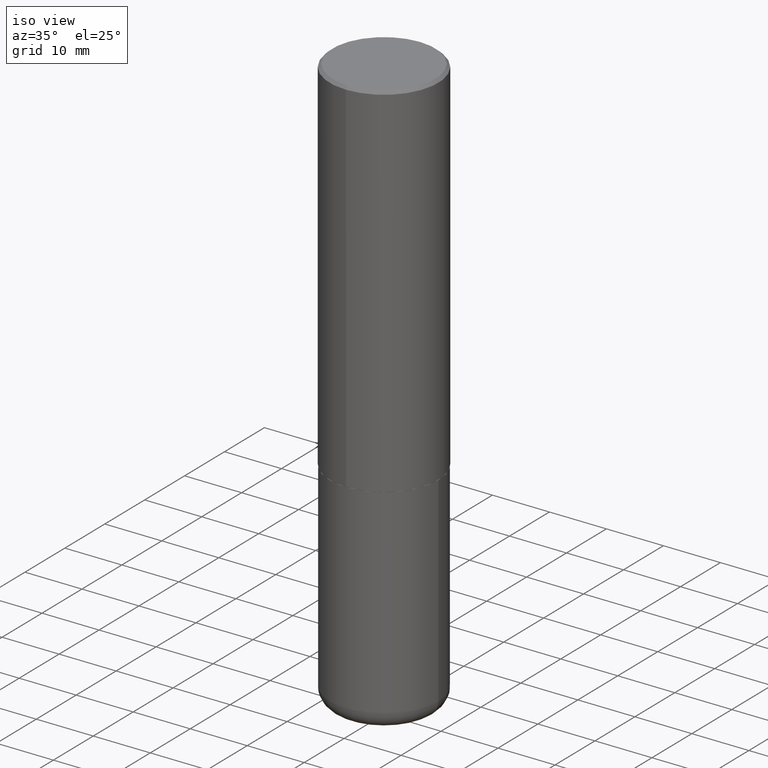
[diagram: clean part render]
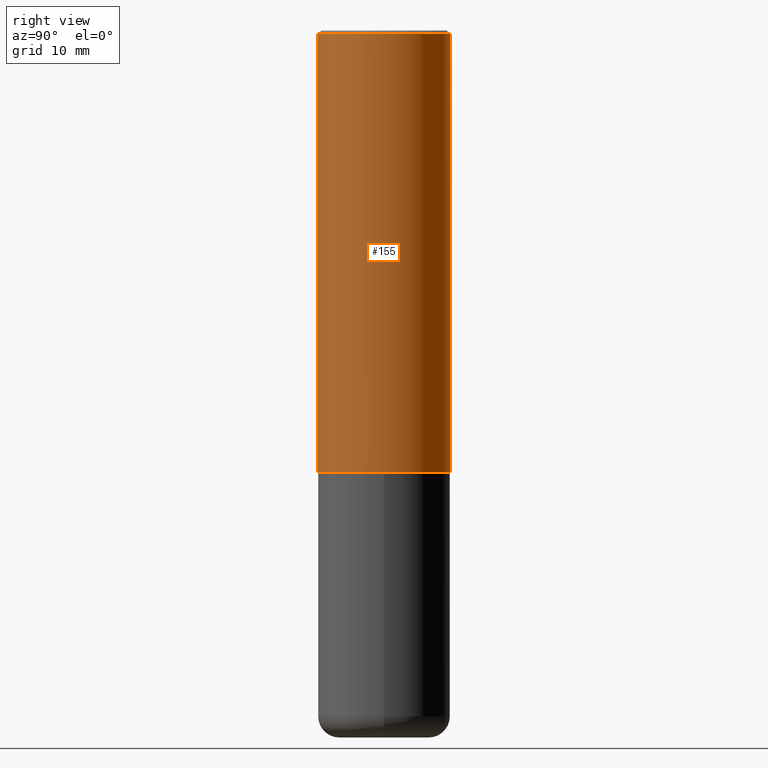
[diagram: tour spotlight — one face highlighted and labeled with its STEP entity id]
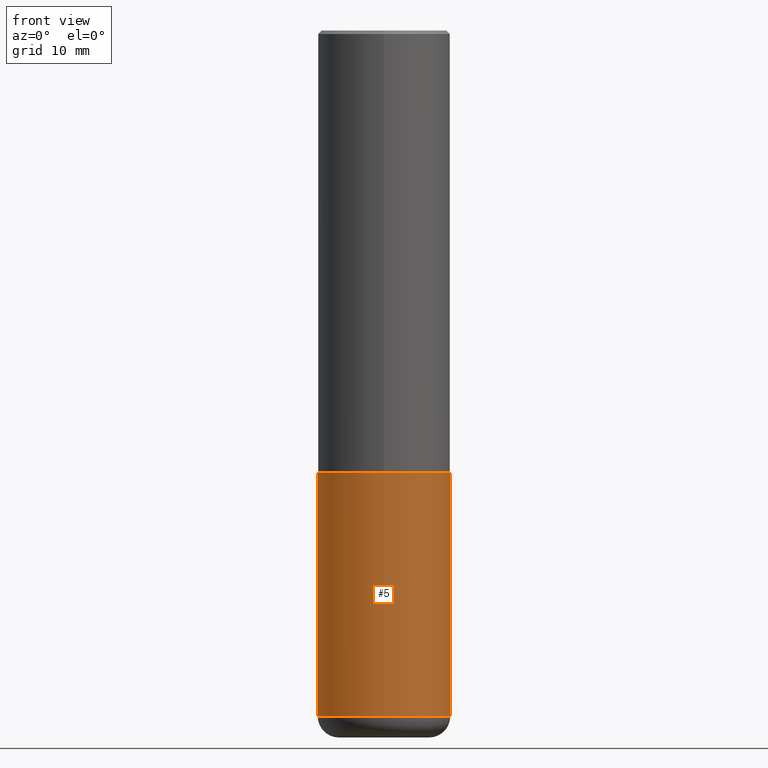
[diagram: tour spotlight — one face highlighted and labeled with its STEP entity id]
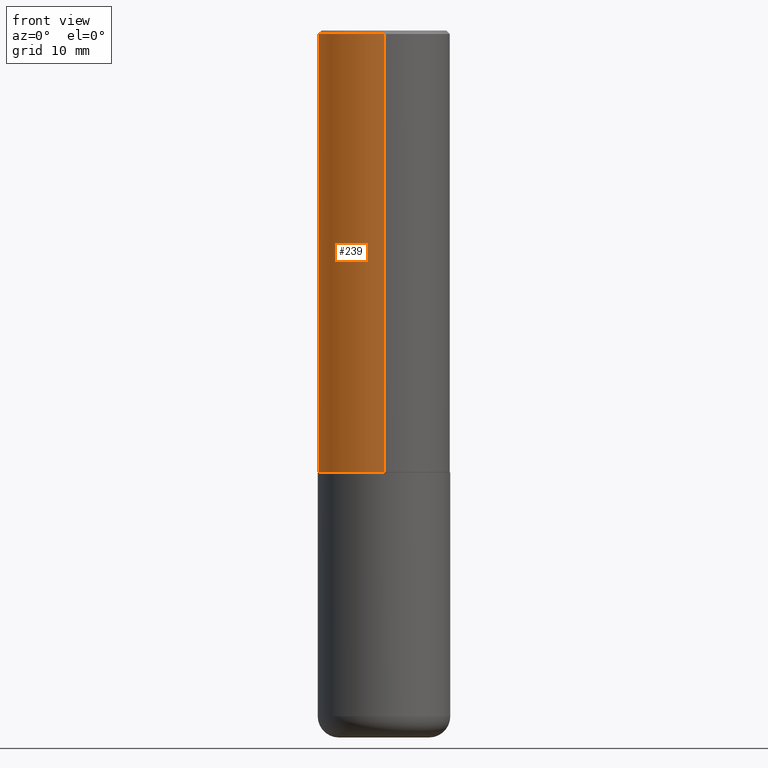
[diagram: tour spotlight — one face highlighted and labeled with its STEP entity id]
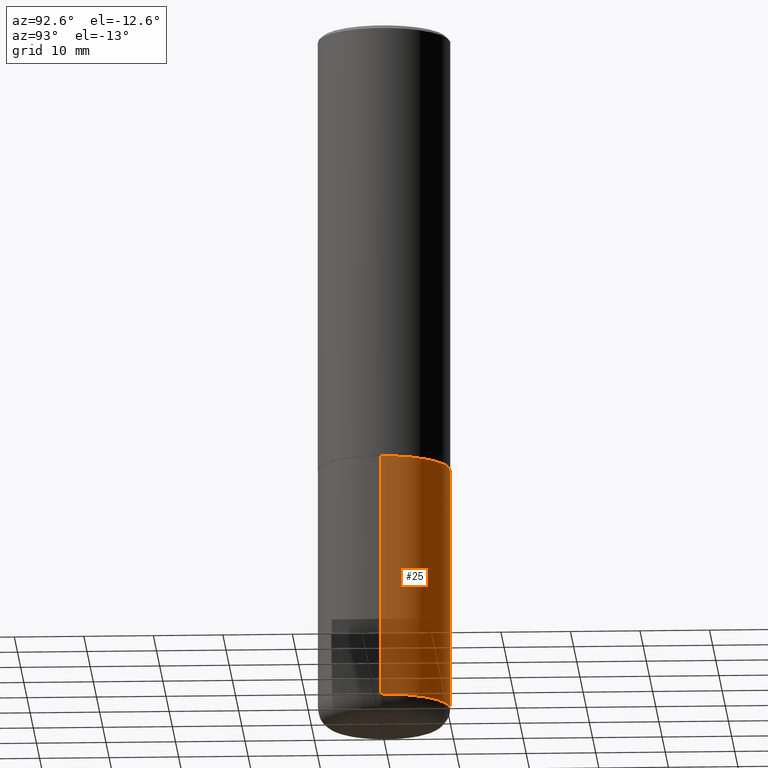
[diagram: tour spotlight — one face highlighted and labeled with its STEP entity id]
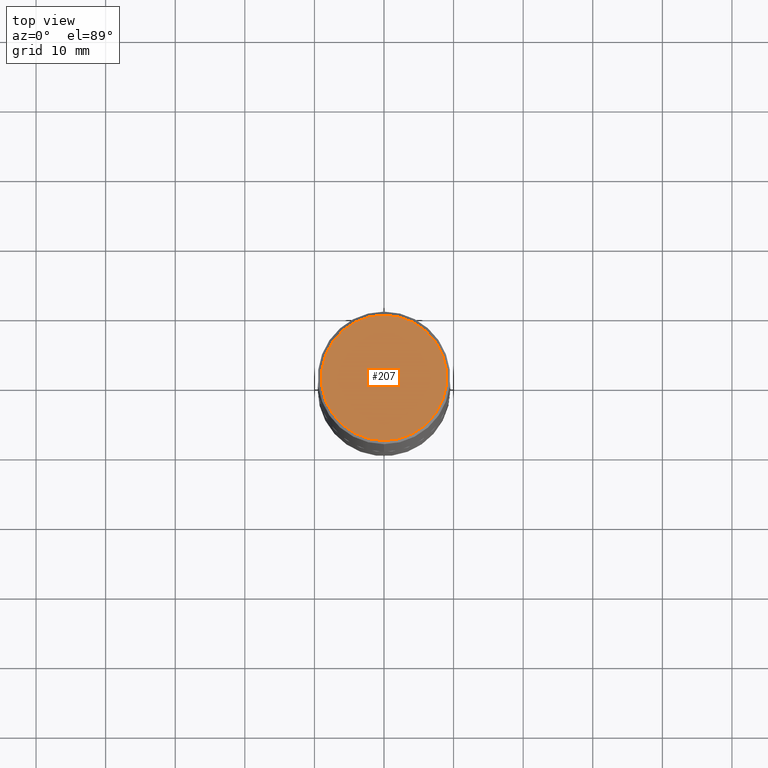
[diagram: tour spotlight — one face highlighted and labeled with its STEP entity id]
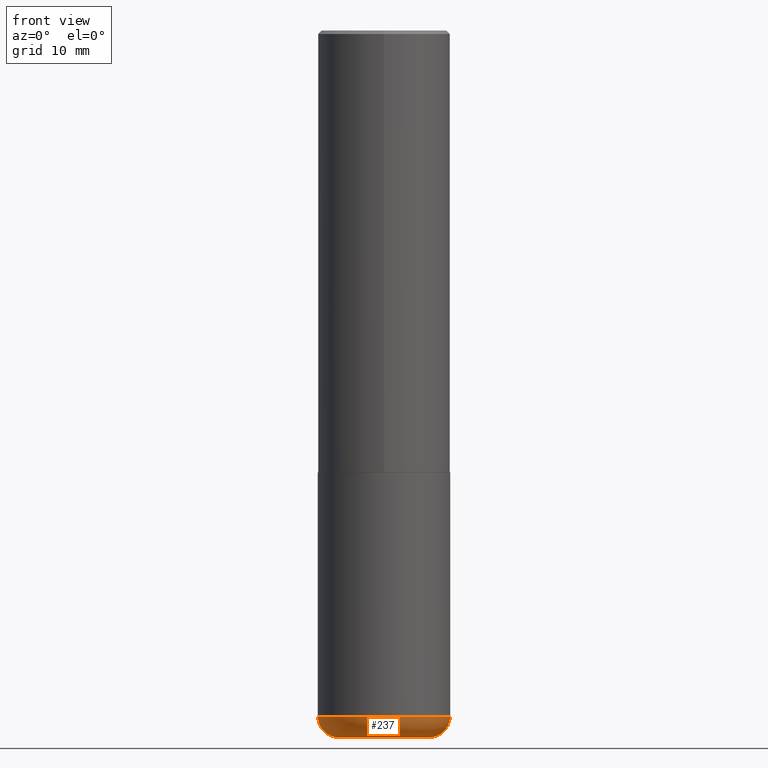
[diagram: tour spotlight — one face highlighted and labeled with its STEP entity id]
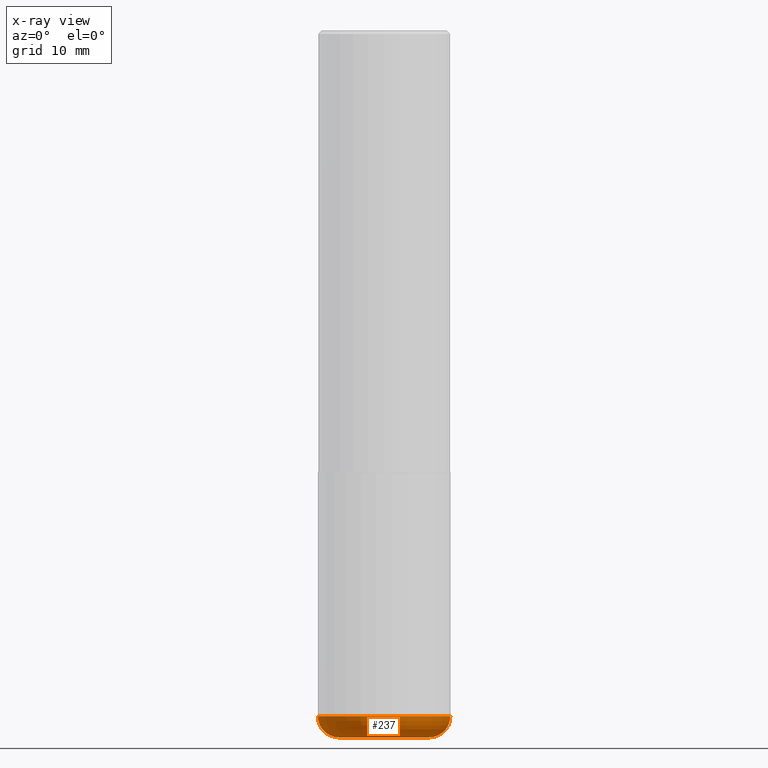
[diagram: x-ray of the same camera — body ghosted, this tour face saturated]
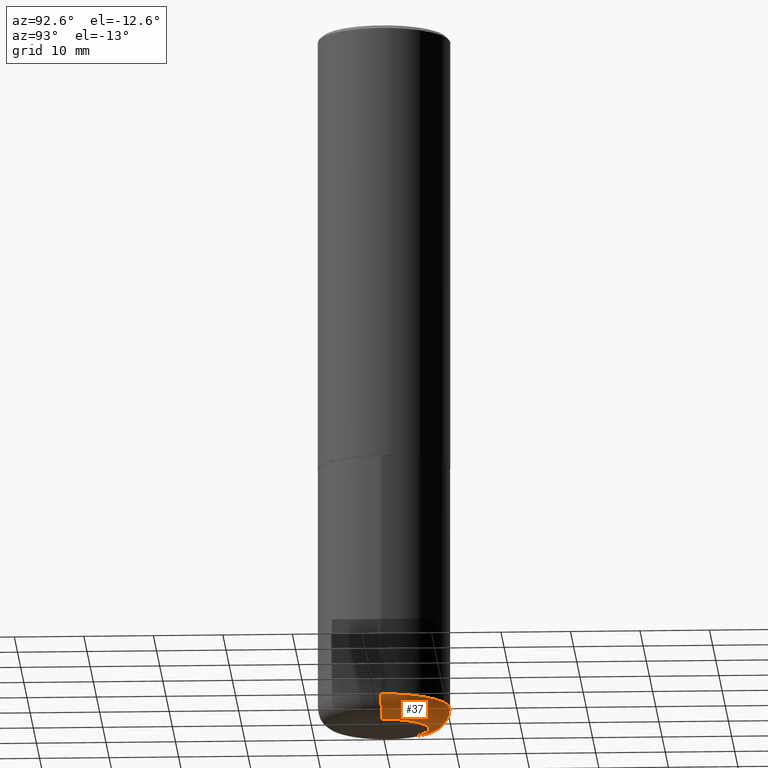
[diagram: tour spotlight — one face highlighted and labeled with its STEP entity id]
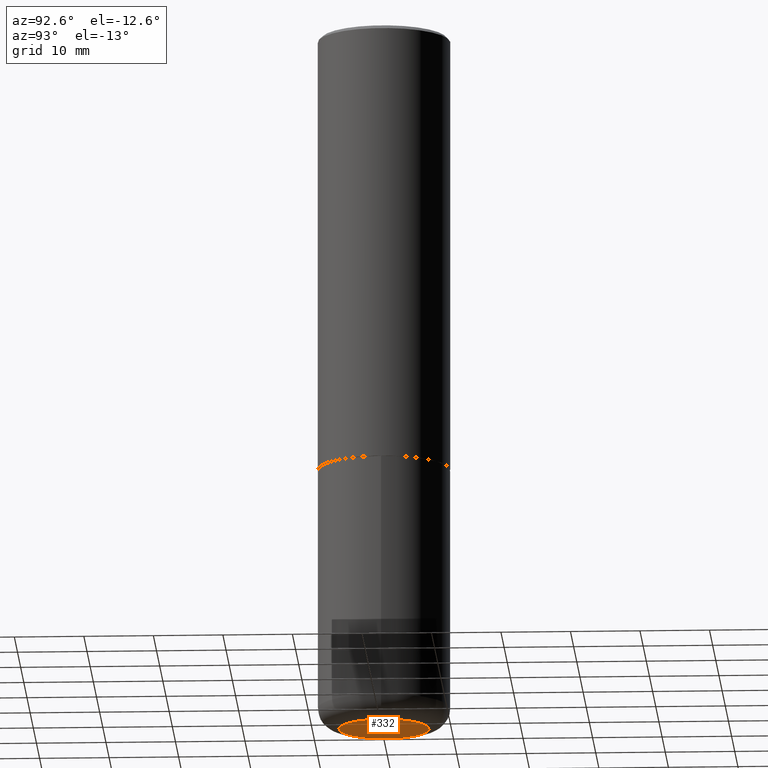
[diagram: tour spotlight — one face highlighted and labeled with its STEP entity id]
A machine part: a face-by-face anatomy tour. The part has 14 B-rep faces; the first image is the clean iso view, then the 8 largest visible faces are spotlighted one at a time (largest first), each with its STEP entity span.

Face 1 — right view, entity #155. In plain terms, the highlighted cylindrical surface (partial cylindrical patch) has radius 9.525 mm, axis along (-0, 0, 1).
Definition (entity closure, byte-faithful):
#11 = DIRECTION ( 'NONE',  ( -2.444946167972934928E-29, 3.492229786509738161E-15, 1.000000000000000000 ) ) ;
#17 = CARTESIAN_POINT ( 'NONE',  ( 4.889892335945890560E-31, -6.984459573019506053E-17, -0.02000000000000008715 ) ) ;
#20 = VERTEX_POINT ( 'NONE', #297 ) ;
#44 = EDGE_CURVE ( 'NONE', #20, #209, #335, .T. ) ;
#55 = FACE_OUTER_BOUND ( 'NONE', #126, .T. ) ;
#62 = EDGE_CURVE ( 'NONE', #209, #130, #212, .T. ) ;
#67 = CARTESIAN_POINT ( 'NONE',  ( -2.618611004132351200E-15, -0.3750000000000001665, 1.309586169941152501E-15 ) ) ;
#70 = VECTOR ( 'NONE', #376, 39.37007874015748143 ) ;
#74 = ORIENTED_EDGE ( 'NONE', *, *, #44, .F. ) ;
#104 = EDGE_CURVE ( 'NONE', #291, #130, #120, .T. ) ;
#108 = DIRECTION ( 'NONE',  ( -2.444946167972934928E-29, 3.492229786509738161E-15, 1.000000000000000000 ) ) ;
#109 = EDGE_CURVE ( 'NONE', #20, #291, #229, .T. ) ;
#120 = LINE ( 'NONE', #267, #70 ) ;
#126 = EDGE_LOOP ( 'NONE', ( #355, #283, #352, #74 ) ) ;
#130 = VERTEX_POINT ( 'NONE', #404 ) ;
#137 = DIRECTION ( 'NONE',  ( -6.982962677686265922E-15, -1.000000000000000000, 3.494488891895536035E-15 ) ) ;
#151 = CARTESIAN_POINT ( 'NONE',  ( -2.572686749164323547E-15, -0.3750000000000001110, -0.01999999999999877570 ) ) ;
#152 = CARTESIAN_POINT ( 'NONE',  ( 6.109920473764365540E-29, -8.727082236487837614E-15, -2.499000000000000110 ) ) ;
#155 = ADVANCED_FACE ( 'NONE', ( #55 ), #244, .T. ) ;
#171 = AXIS2_PLACEMENT_3D ( 'NONE', #152, #242, #413 ) ;
#176 = VECTOR ( 'NONE', #108, 39.37007874015748143 ) ;
#209 = VERTEX_POINT ( 'NONE', #151 ) ;
#212 = CIRCLE ( 'NONE', #302, 0.3750000000000000555 ) ;
#229 = CIRCLE ( 'NONE', #171, 0.3750000000000002776 ) ;
#242 = DIRECTION ( 'NONE',  ( -2.444946167972934928E-29, 3.492229786509738161E-15, 1.000000000000000000 ) ) ;
#244 = CYLINDRICAL_SURFACE ( 'NONE', #303, 0.3750000000000001665 ) ;
#267 = CARTESIAN_POINT ( 'NONE',  ( 2.664535259100376486E-15, 0.3750000000000001665, -1.309586169941152501E-15 ) ) ;
#283 = ORIENTED_EDGE ( 'NONE', *, *, #104, .T. ) ;
#290 = CARTESIAN_POINT ( 'NONE',  ( 2.664535259100408040E-15, 0.3749999999999915623, -2.499000000000001442 ) ) ;
#291 = VERTEX_POINT ( 'NONE', #290 ) ;
#297 = CARTESIAN_POINT ( 'NONE',  ( -2.618611004132290852E-15, -0.3750000000000090483, -2.498999999999999222 ) ) ;
#302 = AXIS2_PLACEMENT_3D ( 'NONE', #17, #11, #137 ) ;
#303 = AXIS2_PLACEMENT_3D ( 'NONE', #349, #381, #314 ) ;
#314 = DIRECTION ( 'NONE',  ( -6.982962677686266711E-15, -1.000000000000000000, 3.492229786509738556E-15 ) ) ;
#335 = LINE ( 'NONE', #67, #176 ) ;
#349 = CARTESIAN_POINT ( 'NONE',  ( 0.000000000000000000, 0.000000000000000000, 0.000000000000000000 ) ) ;
#352 = ORIENTED_EDGE ( 'NONE', *, *, #62, .F. ) ;
#355 = ORIENTED_EDGE ( 'NONE', *, *, #109, .T. ) ;
#376 = DIRECTION ( 'NONE',  ( -2.444946167972934928E-29, 3.492229786509738161E-15, 1.000000000000000000 ) ) ;
#381 = DIRECTION ( 'NONE',  ( -2.444946167972934928E-29, 3.492229786509738161E-15, 1.000000000000000000 ) ) ;
#404 = CARTESIAN_POINT ( 'NONE',  ( 2.618611004132350411E-15, 0.3749999999999999445, -0.02000000000000139513 ) ) ;
#413 = DIRECTION ( 'NONE',  ( -6.982962677686266711E-15, -1.000000000000000000, 2.913971193241878794E-15 ) ) ;

Face 2 — front view, entity #5. In plain terms, the highlighted cylindrical surface (partial cylindrical patch) has radius 9.525 mm, axis along (-0, 0, 1).
Definition (entity closure, byte-faithful):
#5 = ADVANCED_FACE ( 'NONE', ( #254 ), #165, .T. ) ;
#7 = ORIENTED_EDGE ( 'NONE', *, *, #35, .F. ) ;
#9 = ORIENTED_EDGE ( 'NONE', *, *, #220, .F. ) ;
#15 = VERTEX_POINT ( 'NONE', #367 ) ;
#21 = CARTESIAN_POINT ( 'NONE',  ( 0.3750000000000000555, -2.618611004132350016E-15, 1.828566290923476203E-29 ) ) ;
#33 = AXIS2_PLACEMENT_3D ( 'NONE', #412, #142, #116 ) ;
#35 = EDGE_CURVE ( 'NONE', #205, #42, #139, .T. ) ;
#42 = VERTEX_POINT ( 'NONE', #72 ) ;
#52 = LINE ( 'NONE', #21, #127 ) ;
#69 = VECTOR ( 'NONE', #300, 39.37007874015748143 ) ;
#72 = CARTESIAN_POINT ( 'NONE',  ( -0.3750000000000000555, -8.473290211809258834E-15, -2.500000000000000000 ) ) ;
#83 = DIRECTION ( 'NONE',  ( -2.445468806185136597E-29, 3.491481338843145583E-15, 1.000000000000000000 ) ) ;
#86 = CARTESIAN_POINT ( 'NONE',  ( -0.3750000000000001110, -1.088241233561102684E-14, -3.880000000000000338 ) ) ;
#101 = CARTESIAN_POINT ( 'NONE',  ( -0.3750000000000000555, 2.664535259100376091E-15, -1.844600658845589598E-29 ) ) ;
#116 = DIRECTION ( 'NONE',  ( 1.000000000000000000, -6.982962677686266711E-15, 0.000000000000000000 ) ) ;
#117 = CARTESIAN_POINT ( 'NONE',  ( 6.113672015462842613E-29, -8.728703347107864943E-15, -2.500000000000000000 ) ) ;
#127 = VECTOR ( 'NONE', #275, 39.37007874015748143 ) ;
#139 = LINE ( 'NONE', #101, #69 ) ;
#142 = DIRECTION ( 'NONE',  ( -2.445468806185136597E-29, 3.491481338843145583E-15, 1.000000000000000000 ) ) ;
#165 = CYLINDRICAL_SURFACE ( 'NONE', #250, 0.3750000000000000555 ) ;
#195 = EDGE_LOOP ( 'NONE', ( #7, #336, #289, #9 ) ) ;
#203 = AXIS2_PLACEMENT_3D ( 'NONE', #117, #83, #378 ) ;
#205 = VERTEX_POINT ( 'NONE', #86 ) ;
#220 = EDGE_CURVE ( 'NONE', #42, #259, #312, .T. ) ;
#234 = DIRECTION ( 'NONE',  ( -2.445468806185136597E-29, 3.491481338843145583E-15, 1.000000000000000000 ) ) ;
#250 = AXIS2_PLACEMENT_3D ( 'NONE', #263, #234, #329 ) ;
#254 = FACE_OUTER_BOUND ( 'NONE', #195, .T. ) ;
#259 = VERTEX_POINT ( 'NONE', #285 ) ;
#263 = CARTESIAN_POINT ( 'NONE',  ( 0.000000000000000000, 0.000000000000000000, 0.000000000000000000 ) ) ;
#275 = DIRECTION ( 'NONE',  ( -2.445468806185136877E-29, 3.491481338843145188E-15, 1.000000000000000000 ) ) ;
#285 = CARTESIAN_POINT ( 'NONE',  ( 0.3750000000000000555, -1.134731435124021338E-14, -2.500000000000000000 ) ) ;
#289 = ORIENTED_EDGE ( 'NONE', *, *, #319, .T. ) ;
#300 = DIRECTION ( 'NONE',  ( -2.445468806185136877E-29, 3.491481338843145188E-15, 1.000000000000000000 ) ) ;
#312 = CIRCLE ( 'NONE', #203, 0.3750000000000000555 ) ;
#319 = EDGE_CURVE ( 'NONE', #15, #259, #52, .T. ) ;
#327 = EDGE_CURVE ( 'NONE', #205, #15, #366, .T. ) ;
#329 = DIRECTION ( 'NONE',  ( 1.000000000000000000, -6.982962677686265922E-15, 4.876176775795935793E-29 ) ) ;
#336 = ORIENTED_EDGE ( 'NONE', *, *, #327, .T. ) ;
#366 = CIRCLE ( 'NONE', #33, 0.3750000000000000555 ) ;
#367 = CARTESIAN_POINT ( 'NONE',  ( 0.3750000000000001110, -1.616555859884375729E-14, -3.880000000000000338 ) ) ;
#378 = DIRECTION ( 'NONE',  ( 1.000000000000000000, -6.982962677686264344E-15, 0.000000000000000000 ) ) ;
#412 = CARTESIAN_POINT ( 'NONE',  ( 9.488418967998330085E-29, -1.354694759471140570E-14, -3.880000000000000338 ) ) ;

Face 3 — front view, entity #239. In plain terms, the highlighted cylindrical surface (partial cylindrical patch) has radius 9.525 mm, axis along (-0, 0, 1).
Definition (entity closure, byte-faithful):
#19 = CIRCLE ( 'NONE', #114, 0.3750000000000002776 ) ;
#20 = VERTEX_POINT ( 'NONE', #297 ) ;
#44 = EDGE_CURVE ( 'NONE', #20, #209, #335, .T. ) ;
#54 = AXIS2_PLACEMENT_3D ( 'NONE', #121, #79, #379 ) ;
#67 = CARTESIAN_POINT ( 'NONE',  ( -2.618611004132351200E-15, -0.3750000000000001665, 1.309586169941152501E-15 ) ) ;
#70 = VECTOR ( 'NONE', #376, 39.37007874015748143 ) ;
#79 = DIRECTION ( 'NONE',  ( -2.444946167972934928E-29, 3.492229786509738161E-15, 1.000000000000000000 ) ) ;
#104 = EDGE_CURVE ( 'NONE', #291, #130, #120, .T. ) ;
#105 = CIRCLE ( 'NONE', #54, 0.3750000000000000555 ) ;
#108 = DIRECTION ( 'NONE',  ( -2.444946167972934928E-29, 3.492229786509738161E-15, 1.000000000000000000 ) ) ;
#112 = DIRECTION ( 'NONE',  ( -2.444946167972934928E-29, 3.492229786509738161E-15, 1.000000000000000000 ) ) ;
#114 = AXIS2_PLACEMENT_3D ( 'NONE', #208, #112, #344 ) ;
#120 = LINE ( 'NONE', #267, #70 ) ;
#121 = CARTESIAN_POINT ( 'NONE',  ( 4.889892335945890560E-31, -6.984459573019506053E-17, -0.02000000000000008715 ) ) ;
#130 = VERTEX_POINT ( 'NONE', #404 ) ;
#131 = EDGE_CURVE ( 'NONE', #291, #20, #19, .T. ) ;
#145 = CARTESIAN_POINT ( 'NONE',  ( 0.000000000000000000, 0.000000000000000000, 0.000000000000000000 ) ) ;
#151 = CARTESIAN_POINT ( 'NONE',  ( -2.572686749164323547E-15, -0.3750000000000001110, -0.01999999999999877570 ) ) ;
#174 = FACE_OUTER_BOUND ( 'NONE', #184, .T. ) ;
#176 = VECTOR ( 'NONE', #108, 39.37007874015748143 ) ;
#184 = EDGE_LOOP ( 'NONE', ( #288, #375, #252, #217 ) ) ;
#201 = EDGE_CURVE ( 'NONE', #130, #209, #105, .T. ) ;
#208 = CARTESIAN_POINT ( 'NONE',  ( 6.109920473764365540E-29, -8.727082236487837614E-15, -2.499000000000000110 ) ) ;
#209 = VERTEX_POINT ( 'NONE', #151 ) ;
#217 = ORIENTED_EDGE ( 'NONE', *, *, #201, .F. ) ;
#239 = ADVANCED_FACE ( 'NONE', ( #174 ), #306, .T. ) ;
#252 = ORIENTED_EDGE ( 'NONE', *, *, #44, .T. ) ;
#267 = CARTESIAN_POINT ( 'NONE',  ( 2.664535259100376486E-15, 0.3750000000000001665, -1.309586169941152501E-15 ) ) ;
#270 = DIRECTION ( 'NONE',  ( -2.444946167972934928E-29, 3.492229786509738161E-15, 1.000000000000000000 ) ) ;
#288 = ORIENTED_EDGE ( 'NONE', *, *, #104, .F. ) ;
#290 = CARTESIAN_POINT ( 'NONE',  ( 2.664535259100408040E-15, 0.3749999999999915623, -2.499000000000001442 ) ) ;
#291 = VERTEX_POINT ( 'NONE', #290 ) ;
#297 = CARTESIAN_POINT ( 'NONE',  ( -2.618611004132290852E-15, -0.3750000000000090483, -2.498999999999999222 ) ) ;
#306 = CYLINDRICAL_SURFACE ( 'NONE', #393, 0.3750000000000001665 ) ;
#335 = LINE ( 'NONE', #67, #176 ) ;
#344 = DIRECTION ( 'NONE',  ( -6.982962677686266711E-15, -1.000000000000000000, 2.913971193241878794E-15 ) ) ;
#375 = ORIENTED_EDGE ( 'NONE', *, *, #131, .T. ) ;
#376 = DIRECTION ( 'NONE',  ( -2.444946167972934928E-29, 3.492229786509738161E-15, 1.000000000000000000 ) ) ;
#379 = DIRECTION ( 'NONE',  ( -6.982962677686265922E-15, -1.000000000000000000, 3.494488891895536035E-15 ) ) ;
#393 = AXIS2_PLACEMENT_3D ( 'NONE', #145, #270, #407 ) ;
#404 = CARTESIAN_POINT ( 'NONE',  ( 2.618611004132350411E-15, 0.3749999999999999445, -0.02000000000000139513 ) ) ;
#407 = DIRECTION ( 'NONE',  ( -6.982962677686266711E-15, -1.000000000000000000, 3.492229786509738556E-15 ) ) ;

Face 4 — auxiliary view, entity #25. In plain terms, the highlighted cylindrical surface (partial cylindrical patch) has radius 9.525 mm, axis along (-0, 0, 1).
Definition (entity closure, byte-faithful):
#15 = VERTEX_POINT ( 'NONE', #367 ) ;
#21 = CARTESIAN_POINT ( 'NONE',  ( 0.3750000000000000555, -2.618611004132350016E-15, 1.828566290923476203E-29 ) ) ;
#24 = DIRECTION ( 'NONE',  ( -2.445468806185136597E-29, 3.491481338843145583E-15, 1.000000000000000000 ) ) ;
#25 = ADVANCED_FACE ( 'NONE', ( #395 ), #369, .T. ) ;
#35 = EDGE_CURVE ( 'NONE', #205, #42, #139, .T. ) ;
#42 = VERTEX_POINT ( 'NONE', #72 ) ;
#43 = CIRCLE ( 'NONE', #148, 0.3750000000000000555 ) ;
#52 = LINE ( 'NONE', #21, #127 ) ;
#69 = VECTOR ( 'NONE', #300, 39.37007874015748143 ) ;
#72 = CARTESIAN_POINT ( 'NONE',  ( -0.3750000000000000555, -8.473290211809258834E-15, -2.500000000000000000 ) ) ;
#75 = CARTESIAN_POINT ( 'NONE',  ( 0.000000000000000000, 0.000000000000000000, 0.000000000000000000 ) ) ;
#86 = CARTESIAN_POINT ( 'NONE',  ( -0.3750000000000001110, -1.088241233561102684E-14, -3.880000000000000338 ) ) ;
#101 = CARTESIAN_POINT ( 'NONE',  ( -0.3750000000000000555, 2.664535259100376091E-15, -1.844600658845589598E-29 ) ) ;
#127 = VECTOR ( 'NONE', #275, 39.37007874015748143 ) ;
#139 = LINE ( 'NONE', #101, #69 ) ;
#148 = AXIS2_PLACEMENT_3D ( 'NONE', #371, #305, #269 ) ;
#164 = EDGE_CURVE ( 'NONE', #259, #42, #318, .T. ) ;
#173 = ORIENTED_EDGE ( 'NONE', *, *, #164, .F. ) ;
#197 = DIRECTION ( 'NONE',  ( -2.445468806185136597E-29, 3.491481338843145583E-15, 1.000000000000000000 ) ) ;
#205 = VERTEX_POINT ( 'NONE', #86 ) ;
#236 = CARTESIAN_POINT ( 'NONE',  ( 6.113672015462842613E-29, -8.728703347107864943E-15, -2.500000000000000000 ) ) ;
#247 = EDGE_LOOP ( 'NONE', ( #320, #405, #173, #363 ) ) ;
#259 = VERTEX_POINT ( 'NONE', #285 ) ;
#269 = DIRECTION ( 'NONE',  ( 1.000000000000000000, -6.982962677686266711E-15, 0.000000000000000000 ) ) ;
#275 = DIRECTION ( 'NONE',  ( -2.445468806185136877E-29, 3.491481338843145188E-15, 1.000000000000000000 ) ) ;
#285 = CARTESIAN_POINT ( 'NONE',  ( 0.3750000000000000555, -1.134731435124021338E-14, -2.500000000000000000 ) ) ;
#300 = DIRECTION ( 'NONE',  ( -2.445468806185136877E-29, 3.491481338843145188E-15, 1.000000000000000000 ) ) ;
#305 = DIRECTION ( 'NONE',  ( -2.445468806185136597E-29, 3.491481338843145583E-15, 1.000000000000000000 ) ) ;
#316 = DIRECTION ( 'NONE',  ( 1.000000000000000000, -6.982962677686264344E-15, 0.000000000000000000 ) ) ;
#318 = CIRCLE ( 'NONE', #347, 0.3750000000000000555 ) ;
#319 = EDGE_CURVE ( 'NONE', #15, #259, #52, .T. ) ;
#320 = ORIENTED_EDGE ( 'NONE', *, *, #358, .T. ) ;
#333 = DIRECTION ( 'NONE',  ( 1.000000000000000000, -6.982962677686265922E-15, 4.876176775795935793E-29 ) ) ;
#347 = AXIS2_PLACEMENT_3D ( 'NONE', #236, #24, #316 ) ;
#358 = EDGE_CURVE ( 'NONE', #15, #205, #43, .T. ) ;
#363 = ORIENTED_EDGE ( 'NONE', *, *, #319, .F. ) ;
#367 = CARTESIAN_POINT ( 'NONE',  ( 0.3750000000000001110, -1.616555859884375729E-14, -3.880000000000000338 ) ) ;
#369 = CYLINDRICAL_SURFACE ( 'NONE', #398, 0.3750000000000000555 ) ;
#371 = CARTESIAN_POINT ( 'NONE',  ( 9.488418967998330085E-29, -1.354694759471140570E-14, -3.880000000000000338 ) ) ;
#395 = FACE_OUTER_BOUND ( 'NONE', #247, .T. ) ;
#398 = AXIS2_PLACEMENT_3D ( 'NONE', #75, #197, #333 ) ;
#405 = ORIENTED_EDGE ( 'NONE', *, *, #35, .T. ) ;

Face 5 — top view, entity #207. In plain terms, the highlighted planar face has unit normal (0, -0, -1).
Definition (entity closure, byte-faithful):
#3 = AXIS2_PLACEMENT_3D ( 'NONE', #41, #257, #294 ) ;
#18 = EDGE_LOOP ( 'NONE', ( #161, #110 ) ) ;
#29 = DIRECTION ( 'NONE',  ( 2.444946167972934647E-29, -3.492229786509738161E-15, -1.000000000000000000 ) ) ;
#39 = VERTEX_POINT ( 'NONE', #402 ) ;
#41 = CARTESIAN_POINT ( 'NONE',  ( -4.181009497849235809E-45, 5.971929401690963589E-31, 1.710061985256567949E-16 ) ) ;
#53 = CARTESIAN_POINT ( 'NONE',  ( 2.478951750578623420E-15, 0.3549999999999998157, -1.154238474948128131E-15 ) ) ;
#56 = EDGE_CURVE ( 'NONE', #356, #39, #286, .T. ) ;
#57 = DIRECTION ( 'NONE',  ( -2.444946167972934928E-29, 3.492229786509738161E-15, 1.000000000000000000 ) ) ;
#110 = ORIENTED_EDGE ( 'NONE', *, *, #377, .T. ) ;
#161 = ORIENTED_EDGE ( 'NONE', *, *, #56, .T. ) ;
#185 = CARTESIAN_POINT ( 'NONE',  ( -4.181009497849235809E-45, 5.971929401690963589E-31, 1.710061985256567949E-16 ) ) ;
#196 = AXIS2_PLACEMENT_3D ( 'NONE', #185, #57, #287 ) ;
#204 = FACE_OUTER_BOUND ( 'NONE', #18, .T. ) ;
#207 = ADVANCED_FACE ( 'NONE', ( #204 ), #211, .F. ) ;
#211 = PLANE ( 'NONE',  #213 ) ;
#213 = AXIS2_PLACEMENT_3D ( 'NONE', #53, #29, #272 ) ;
#257 = DIRECTION ( 'NONE',  ( -2.444946167972934928E-29, 3.492229786509738161E-15, 1.000000000000000000 ) ) ;
#272 = DIRECTION ( 'NONE',  ( 6.982962677686265922E-15, 1.000000000000000000, -3.492229786509738161E-15 ) ) ;
#286 = CIRCLE ( 'NONE', #3, 0.3549999999999998157 ) ;
#287 = DIRECTION ( 'NONE',  ( -6.982962677686266711E-15, -1.000000000000000000, 3.492229786509737767E-15 ) ) ;
#294 = DIRECTION ( 'NONE',  ( -6.982962677686266711E-15, -1.000000000000000000, 3.492229786509737767E-15 ) ) ;
#356 = VERTEX_POINT ( 'NONE', #403 ) ;
#377 = EDGE_CURVE ( 'NONE', #39, #356, #387, .T. ) ;
#387 = CIRCLE ( 'NONE', #196, 0.3549999999999998157 ) ;
#402 = CARTESIAN_POINT ( 'NONE',  ( -2.504081769186608216E-15, -0.3549999999999998157, 1.410747772736613804E-15 ) ) ;
#403 = CARTESIAN_POINT ( 'NONE',  ( 2.548781377355487113E-15, 0.3549999999999998157, -1.068735375685299770E-15 ) ) ;

Face 6 — front view, entity #237. An x-ray twin of the same camera follows (body ghosted, this face saturated) — the face is partly hidden behind the body. In plain terms, the highlighted toroidal blend (fillet) surface has major radius 6.477 mm and minor (blend) radius 3.048 mm.
Definition (entity closure, byte-faithful):
#2 = VERTEX_POINT ( 'NONE', #169 ) ;
#15 = VERTEX_POINT ( 'NONE', #367 ) ;
#23 = ORIENTED_EDGE ( 'NONE', *, *, #276, .T. ) ;
#28 = CARTESIAN_POINT ( 'NONE',  ( 9.488418967998330085E-29, -1.354694759471140570E-14, -3.880000000000000338 ) ) ;
#33 = AXIS2_PLACEMENT_3D ( 'NONE', #412, #142, #116 ) ;
#34 = DIRECTION ( 'NONE',  ( -2.445468806185136597E-29, 3.491481338843145583E-15, 1.000000000000000000 ) ) ;
#38 = TOROIDAL_SURFACE ( 'NONE', #280, 0.2550000000000000044, 0.1200000000000001898 ) ;
#48 = DIRECTION ( 'NONE',  ( -2.445468806185136597E-29, 3.491481338843145583E-15, 1.000000000000000000 ) ) ;
#59 = EDGE_LOOP ( 'NONE', ( #227, #23, #170, #224 ) ) ;
#77 = CIRCLE ( 'NONE', #399, 0.1200000000000002176 ) ;
#86 = CARTESIAN_POINT ( 'NONE',  ( -0.3750000000000001110, -1.088241233561102684E-14, -3.880000000000000338 ) ) ;
#113 = CARTESIAN_POINT ( 'NONE',  ( -0.2550000000000000044, -1.151822685739767881E-14, -4.000000000000000888 ) ) ;
#116 = DIRECTION ( 'NONE',  ( 1.000000000000000000, -6.982962677686266711E-15, 0.000000000000000000 ) ) ;
#142 = DIRECTION ( 'NONE',  ( -2.445468806185136597E-29, 3.491481338843145583E-15, 1.000000000000000000 ) ) ;
#149 = DIRECTION ( 'NONE',  ( 1.000000000000000000, -6.982962677686272233E-15, 0.000000000000000000 ) ) ;
#169 = CARTESIAN_POINT ( 'NONE',  ( 0.2550000000000000044, -1.574658083818258381E-14, -4.000000000000000888 ) ) ;
#170 = ORIENTED_EDGE ( 'NONE', *, *, #188, .T. ) ;
#175 = DIRECTION ( 'NONE',  ( -1.000000000000000000, 7.105427357600994759E-15, 0.000000000000000000 ) ) ;
#178 = FACE_OUTER_BOUND ( 'NONE', #59, .T. ) ;
#186 = CARTESIAN_POINT ( 'NONE',  ( 9.781875224740547508E-29, -1.396592535537258391E-14, -4.000000000000000888 ) ) ;
#188 = EDGE_CURVE ( 'NONE', #2, #15, #77, .T. ) ;
#205 = VERTEX_POINT ( 'NONE', #86 ) ;
#215 = DIRECTION ( 'NONE',  ( -6.982962677686266711E-15, -1.000000000000000000, 3.491481338843145583E-15 ) ) ;
#224 = ORIENTED_EDGE ( 'NONE', *, *, #327, .F. ) ;
#227 = ORIENTED_EDGE ( 'NONE', *, *, #232, .F. ) ;
#232 = EDGE_CURVE ( 'NONE', #360, #205, #323, .T. ) ;
#237 = ADVANCED_FACE ( 'NONE', ( #178 ), #38, .T. ) ;
#276 = EDGE_CURVE ( 'NONE', #360, #2, #408, .T. ) ;
#277 = CARTESIAN_POINT ( 'NONE',  ( -0.2550000000000000044, -1.173506361852314940E-14, -3.880000000000000338 ) ) ;
#280 = AXIS2_PLACEMENT_3D ( 'NONE', #28, #48, #415 ) ;
#293 = AXIS2_PLACEMENT_3D ( 'NONE', #186, #34, #418 ) ;
#323 = CIRCLE ( 'NONE', #340, 0.1200000000000002176 ) ;
#327 = EDGE_CURVE ( 'NONE', #205, #15, #366, .T. ) ;
#340 = AXIS2_PLACEMENT_3D ( 'NONE', #277, #410, #175 ) ;
#345 = CARTESIAN_POINT ( 'NONE',  ( 0.2550000000000000044, -1.532760307752140402E-14, -3.880000000000000338 ) ) ;
#360 = VERTEX_POINT ( 'NONE', #113 ) ;
#366 = CIRCLE ( 'NONE', #33, 0.3750000000000000555 ) ;
#367 = CARTESIAN_POINT ( 'NONE',  ( 0.3750000000000001110, -1.616555859884375729E-14, -3.880000000000000338 ) ) ;
#399 = AXIS2_PLACEMENT_3D ( 'NONE', #345, #215, #149 ) ;
#408 = CIRCLE ( 'NONE', #293, 0.2550000000000000044 ) ;
#410 = DIRECTION ( 'NONE',  ( 7.105427357601001859E-15, 1.000000000000000000, -3.491481338843145583E-15 ) ) ;
#412 = CARTESIAN_POINT ( 'NONE',  ( 9.488418967998330085E-29, -1.354694759471140570E-14, -3.880000000000000338 ) ) ;
#415 = DIRECTION ( 'NONE',  ( 1.000000000000000000, -6.982962677686263555E-15, 4.883557194083111219E-29 ) ) ;
#418 = DIRECTION ( 'NONE',  ( 1.000000000000000000, -6.982962677686267499E-15, 0.000000000000000000 ) ) ;

Face 7 — auxiliary view, entity #37. In plain terms, the highlighted toroidal blend (fillet) surface has major radius 6.477 mm and minor (blend) radius 3.048 mm.
Definition (entity closure, byte-faithful):
#1 = ORIENTED_EDGE ( 'NONE', *, *, #232, .T. ) ;
#2 = VERTEX_POINT ( 'NONE', #169 ) ;
#13 = CARTESIAN_POINT ( 'NONE',  ( 9.488418967998330085E-29, -1.354694759471140570E-14, -3.880000000000000338 ) ) ;
#15 = VERTEX_POINT ( 'NONE', #367 ) ;
#37 = ADVANCED_FACE ( 'NONE', ( #339 ), #310, .T. ) ;
#43 = CIRCLE ( 'NONE', #148, 0.3750000000000000555 ) ;
#50 = CARTESIAN_POINT ( 'NONE',  ( 9.781875224740547508E-29, -1.396592535537258391E-14, -4.000000000000000888 ) ) ;
#77 = CIRCLE ( 'NONE', #399, 0.1200000000000002176 ) ;
#86 = CARTESIAN_POINT ( 'NONE',  ( -0.3750000000000001110, -1.088241233561102684E-14, -3.880000000000000338 ) ) ;
#113 = CARTESIAN_POINT ( 'NONE',  ( -0.2550000000000000044, -1.151822685739767881E-14, -4.000000000000000888 ) ) ;
#148 = AXIS2_PLACEMENT_3D ( 'NONE', #371, #305, #269 ) ;
#149 = DIRECTION ( 'NONE',  ( 1.000000000000000000, -6.982962677686272233E-15, 0.000000000000000000 ) ) ;
#169 = CARTESIAN_POINT ( 'NONE',  ( 0.2550000000000000044, -1.574658083818258381E-14, -4.000000000000000888 ) ) ;
#175 = DIRECTION ( 'NONE',  ( -1.000000000000000000, 7.105427357600994759E-15, 0.000000000000000000 ) ) ;
#188 = EDGE_CURVE ( 'NONE', #2, #15, #77, .T. ) ;
#205 = VERTEX_POINT ( 'NONE', #86 ) ;
#215 = DIRECTION ( 'NONE',  ( -6.982962677686266711E-15, -1.000000000000000000, 3.491481338843145583E-15 ) ) ;
#232 = EDGE_CURVE ( 'NONE', #360, #205, #323, .T. ) ;
#240 = DIRECTION ( 'NONE',  ( -2.445468806185136597E-29, 3.491481338843145583E-15, 1.000000000000000000 ) ) ;
#245 = EDGE_CURVE ( 'NONE', #2, #360, #331, .T. ) ;
#251 = EDGE_LOOP ( 'NONE', ( #385, #1, #325, #341 ) ) ;
#261 = DIRECTION ( 'NONE',  ( 1.000000000000000000, -6.982962677686263555E-15, 4.883557194083111219E-29 ) ) ;
#269 = DIRECTION ( 'NONE',  ( 1.000000000000000000, -6.982962677686266711E-15, 0.000000000000000000 ) ) ;
#277 = CARTESIAN_POINT ( 'NONE',  ( -0.2550000000000000044, -1.173506361852314940E-14, -3.880000000000000338 ) ) ;
#305 = DIRECTION ( 'NONE',  ( -2.445468806185136597E-29, 3.491481338843145583E-15, 1.000000000000000000 ) ) ;
#309 = DIRECTION ( 'NONE',  ( 1.000000000000000000, -6.982962677686267499E-15, 0.000000000000000000 ) ) ;
#310 = TOROIDAL_SURFACE ( 'NONE', #365, 0.2550000000000000044, 0.1200000000000001898 ) ;
#323 = CIRCLE ( 'NONE', #340, 0.1200000000000002176 ) ;
#325 = ORIENTED_EDGE ( 'NONE', *, *, #358, .F. ) ;
#331 = CIRCLE ( 'NONE', #417, 0.2550000000000000044 ) ;
#339 = FACE_OUTER_BOUND ( 'NONE', #251, .T. ) ;
#340 = AXIS2_PLACEMENT_3D ( 'NONE', #277, #410, #175 ) ;
#341 = ORIENTED_EDGE ( 'NONE', *, *, #188, .F. ) ;
#345 = CARTESIAN_POINT ( 'NONE',  ( 0.2550000000000000044, -1.532760307752140402E-14, -3.880000000000000338 ) ) ;
#358 = EDGE_CURVE ( 'NONE', #15, #205, #43, .T. ) ;
#360 = VERTEX_POINT ( 'NONE', #113 ) ;
#361 = DIRECTION ( 'NONE',  ( -2.445468806185136597E-29, 3.491481338843145583E-15, 1.000000000000000000 ) ) ;
#365 = AXIS2_PLACEMENT_3D ( 'NONE', #13, #361, #261 ) ;
#367 = CARTESIAN_POINT ( 'NONE',  ( 0.3750000000000001110, -1.616555859884375729E-14, -3.880000000000000338 ) ) ;
#371 = CARTESIAN_POINT ( 'NONE',  ( 9.488418967998330085E-29, -1.354694759471140570E-14, -3.880000000000000338 ) ) ;
#385 = ORIENTED_EDGE ( 'NONE', *, *, #245, .T. ) ;
#399 = AXIS2_PLACEMENT_3D ( 'NONE', #345, #215, #149 ) ;
#410 = DIRECTION ( 'NONE',  ( 7.105427357601001859E-15, 1.000000000000000000, -3.491481338843145583E-15 ) ) ;
#417 = AXIS2_PLACEMENT_3D ( 'NONE', #50, #240, #309 ) ;

Face 8 — auxiliary view, entity #332. In plain terms, the highlighted planar face has unit normal (0, -0, -1).
Definition (entity closure, byte-faithful):
#2 = VERTEX_POINT ( 'NONE', #169 ) ;
#34 = DIRECTION ( 'NONE',  ( -2.445468806185136597E-29, 3.491481338843145583E-15, 1.000000000000000000 ) ) ;
#50 = CARTESIAN_POINT ( 'NONE',  ( 9.781875224740547508E-29, -1.396592535537258391E-14, -4.000000000000000888 ) ) ;
#76 = CARTESIAN_POINT ( 'NONE',  ( 3.797124611134379022E-29, -2.253642886490752919E-14, -4.000000000000000000 ) ) ;
#113 = CARTESIAN_POINT ( 'NONE',  ( -0.2550000000000000044, -1.151822685739767881E-14, -4.000000000000000888 ) ) ;
#167 = ORIENTED_EDGE ( 'NONE', *, *, #245, .F. ) ;
#169 = CARTESIAN_POINT ( 'NONE',  ( 0.2550000000000000044, -1.574658083818258381E-14, -4.000000000000000888 ) ) ;
#186 = CARTESIAN_POINT ( 'NONE',  ( 9.781875224740547508E-29, -1.396592535537258391E-14, -4.000000000000000888 ) ) ;
#202 = DIRECTION ( 'NONE',  ( -1.000000000000000000, 6.982962677686265922E-15, -4.876176775795935793E-29 ) ) ;
#206 = DIRECTION ( 'NONE',  ( 2.438088387897960049E-29, -3.491481338843145188E-15, -1.000000000000000000 ) ) ;
#214 = PLANE ( 'NONE',  #374 ) ;
#240 = DIRECTION ( 'NONE',  ( -2.445468806185136597E-29, 3.491481338843145583E-15, 1.000000000000000000 ) ) ;
#245 = EDGE_CURVE ( 'NONE', #2, #360, #331, .T. ) ;
#265 = EDGE_LOOP ( 'NONE', ( #167, #299 ) ) ;
#276 = EDGE_CURVE ( 'NONE', #360, #2, #408, .T. ) ;
#293 = AXIS2_PLACEMENT_3D ( 'NONE', #186, #34, #418 ) ;
#299 = ORIENTED_EDGE ( 'NONE', *, *, #276, .F. ) ;
#309 = DIRECTION ( 'NONE',  ( 1.000000000000000000, -6.982962677686267499E-15, 0.000000000000000000 ) ) ;
#331 = CIRCLE ( 'NONE', #417, 0.2550000000000000044 ) ;
#332 = ADVANCED_FACE ( 'NONE', ( #414 ), #214, .T. ) ;
#360 = VERTEX_POINT ( 'NONE', #113 ) ;
#374 = AXIS2_PLACEMENT_3D ( 'NONE', #76, #206, #202 ) ;
#408 = CIRCLE ( 'NONE', #293, 0.2550000000000000044 ) ;
#414 = FACE_OUTER_BOUND ( 'NONE', #265, .T. ) ;
#417 = AXIS2_PLACEMENT_3D ( 'NONE', #50, #240, #309 ) ;
#418 = DIRECTION ( 'NONE',  ( 1.000000000000000000, -6.982962677686267499E-15, 0.000000000000000000 ) ) ;